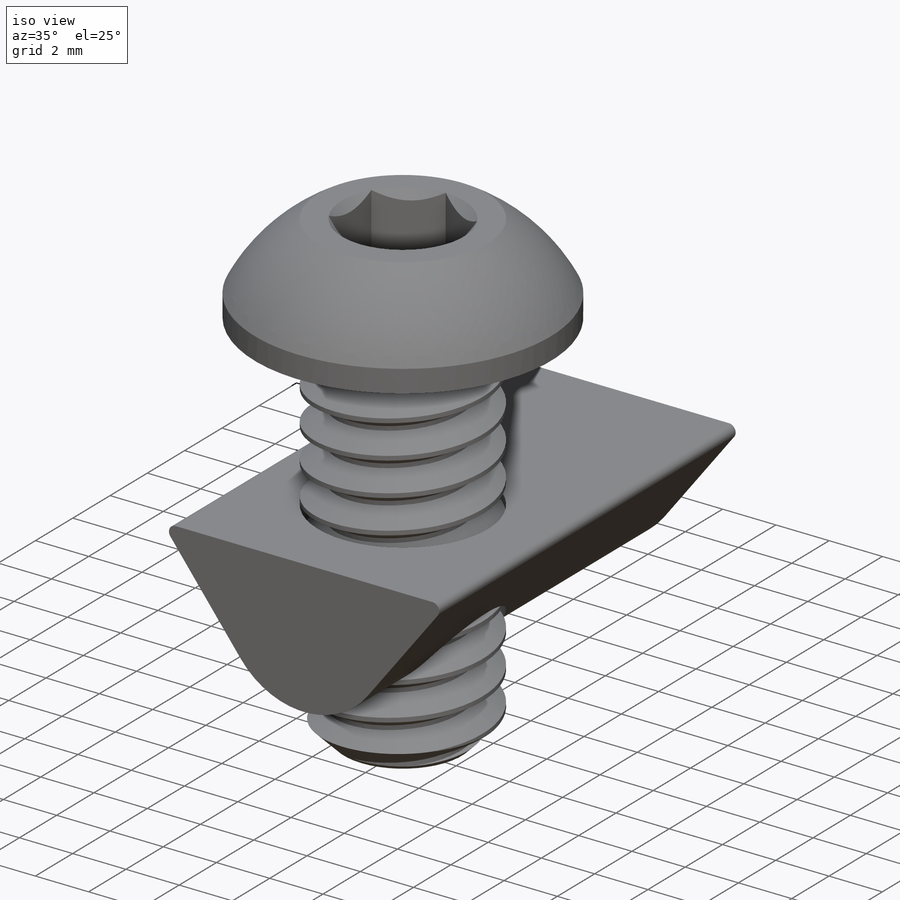
[diagram: iso view]
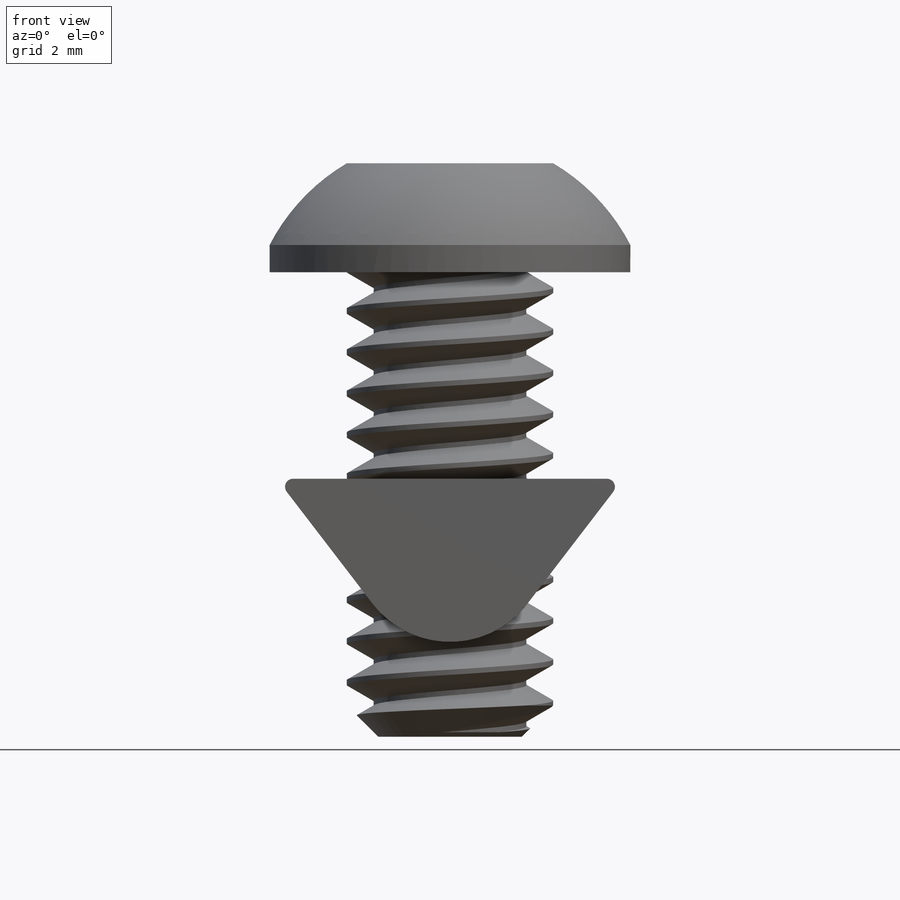
[diagram: front view]
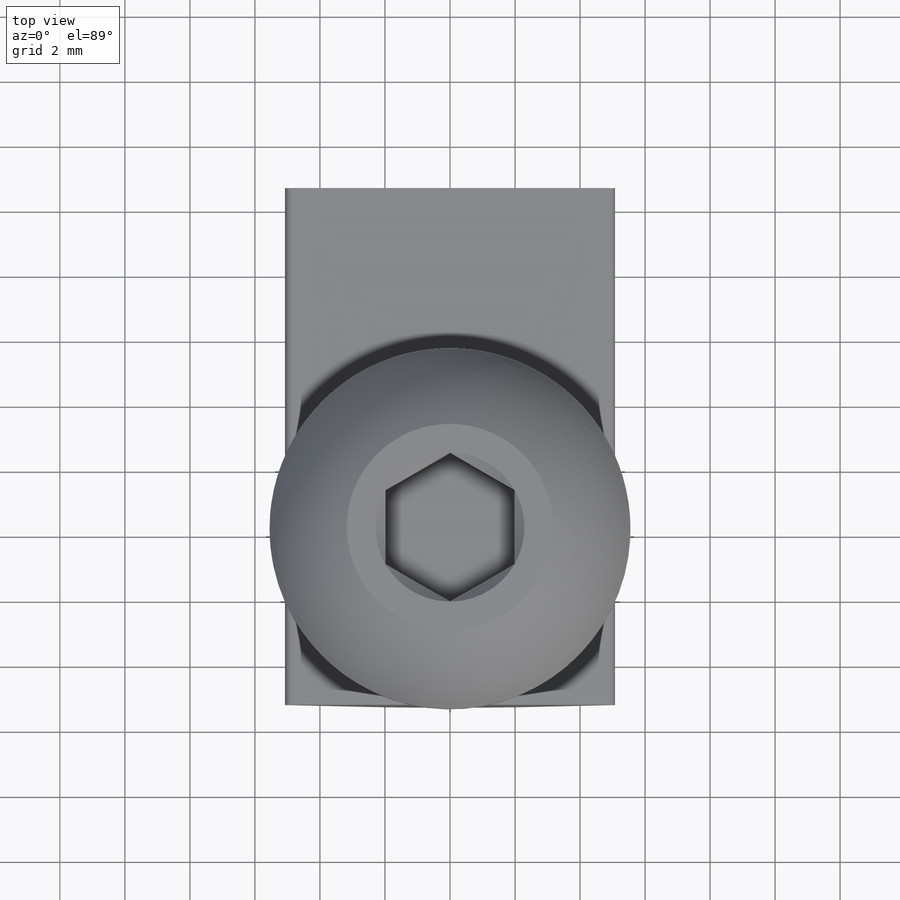
[diagram: top view]
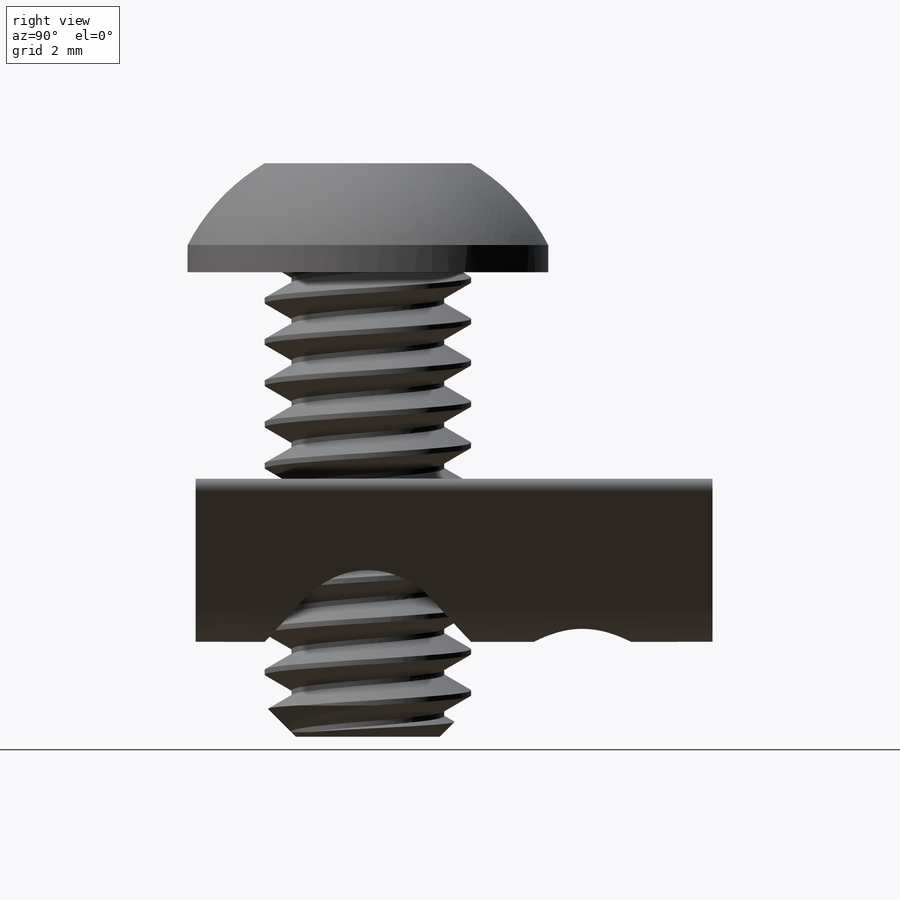
[diagram: right view]
SOLIDWORKS PART (.sldprt)
format: sldprt  version: not decoded by parser v0  size: 868,352 bytes
history: native  units: mm
features: sketch x12, cut_extrude x4, extrude x2, revolve x2, material x1, helix x1, sweep x1, cut_revolve x1 (+14 scaffold rows collapsed)
feature tree (38):
  scaffold x14  (default folders/planes/origin — collapsed)
  material  "Material <not specified>"
  sketch  "Sketch1"  dims[D1=6.35mm]
  extrude  "Boss-Extrude1"  Depth=14.2875mm
  sketch  "Sketch2"  dims[D1=0.0mm]
  helix  "Helix/Spiral1"  Pitch=15.5575mm
  sketch  "Sketch3"  dims[D1=1.27mm D2=~0.15875mm D3=25.4mm]
  sweep  "Cut-Sweep1"
  sketch  "SketchZ"
  sketch  "Sketch4"
  cut_extrude  "Cut-Extrude1"  Depth=1.27mm
  sketch  "Sketch5"  dims[D1=11.0998mm D2=7.112mm D3=3.3528mm D4=0.8382mm]
  revolve  "Revolve1"  Angle=360deg
  sketch  "Sketch6"  dims[D1=~3.96875mm]
  cut_extrude  "Cut-Extrude2"  Depth=2.38125mm
  sketch  "Sketch7"
  cut_extrude  "Cut-Extrude3"  Depth=2.38125mm
  sketch  "Sketch8"  dims[c1.D1=14.224mm c1.D3=4.6736mm c1.D4=3.0mm c1.D6=0.25mm c1.D2=~15.332139mm c2.D3=18.542mm c2.D4=24.892mm c2.D1=35.1282mm c2.D5=~5.020693mm c2.D6=15.875mm c2.D7=0.0508mm c3.D4=7.8486mm c3.D1=10.15mm c3.D2=6.35mm c4.D4=5.08mm c5.D4=30.0deg c5.D6=~1.101132mm c6.D6=15.0deg c6.D7=0.254mm c6.D8=1.651mm c6.D3=~1.88945mm c7.D3=75.0deg c8.D3=~5.020385mm c9.D3=75.0deg]
  extrude  "Boss-Extrude2"  Depth=15.9mm
  sketch  "Sketch9"  dims[D3=2.9464mm D1=7.5946mm D2=0.0mm]
  cut_extrude  "Cut-Extrude4"  [1 undecoded]
  sketch  "Sketch10"  dims[c1.D1=6.6mm c1.D2=3.0mm c1.D3=0.25mm c1.D4=~2.610555mm c2.D4=60.0deg c2.D5=0.75mm]
  cut_revolve  "Cut-Revolve1"  Angle=360deg
  sketch  "Sketch11"  dims[D1=1.0mm]
  revolve  "Revolve2"  Angle=360deg
decode coverage: 18 of 23 modeling features carry decoded parameters
note: ~ marks probable driven/reference dimensions
note: 1 parameter value undecoded
note: suppression state not decoded; provenance and decode notes live in map.json
